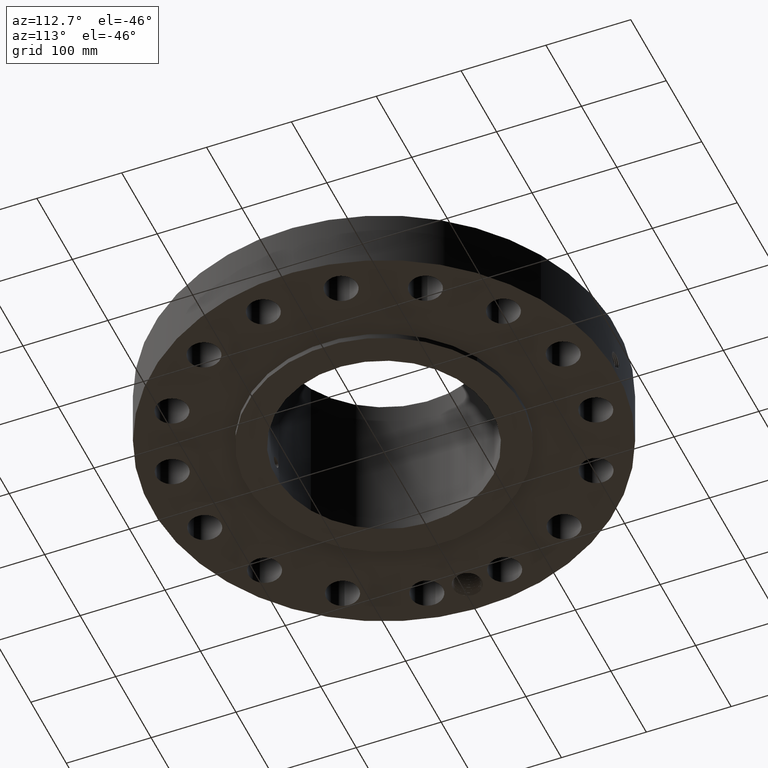
[diagram: clean part render]
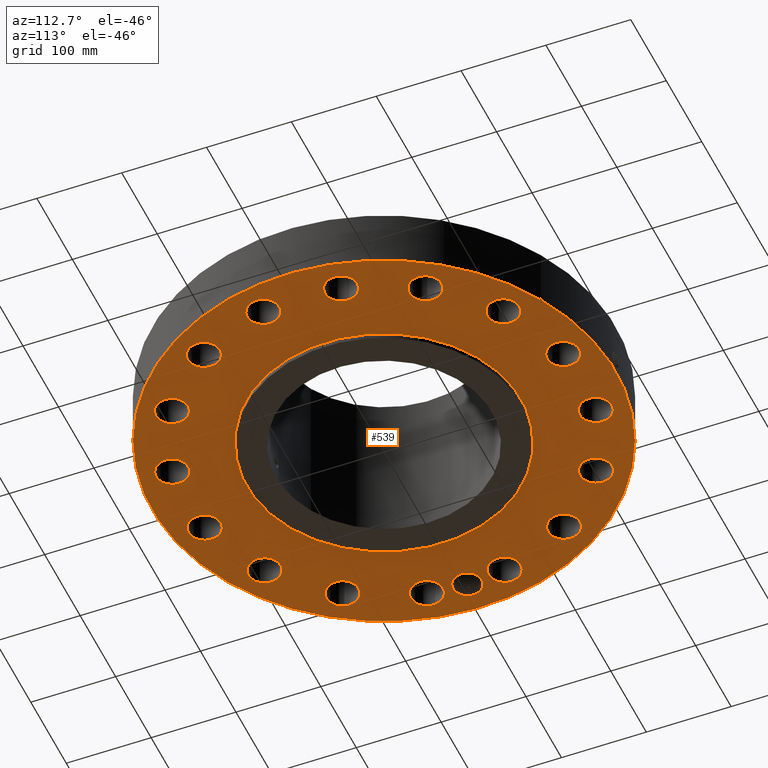
[diagram: same view with one face highlighted and labeled with its STEP entity id]
A machine part, auxiliary view. The second image highlights one B-rep face of the part: STEP entity #539.
In plain terms, the highlighted planar face has unit normal (0, 0, -1).
Its self-contained STEP definition (entity closure, byte-faithful):
#42=AXIS2_PLACEMENT_3D('Circle Axis2P3D',#40,#41,$) ;
#165=AXIS2_PLACEMENT_3D('Plane Axis2P3D',#162,#163,#164) ;
#169=AXIS2_PLACEMENT_3D('Circle Axis2P3D',#167,#168,$) ;
#216=AXIS2_PLACEMENT_3D('Circle Axis2P3D',#214,#215,$) ;
#223=AXIS2_PLACEMENT_3D('Circle Axis2P3D',#221,#222,$) ;
#235=AXIS2_PLACEMENT_3D('Circle Axis2P3D',#233,#234,$) ;
#244=AXIS2_PLACEMENT_3D('Circle Axis2P3D',#242,#243,$) ;
#253=AXIS2_PLACEMENT_3D('Circle Axis2P3D',#251,#252,$) ;
#262=AXIS2_PLACEMENT_3D('Circle Axis2P3D',#260,#261,$) ;
#271=AXIS2_PLACEMENT_3D('Circle Axis2P3D',#269,#270,$) ;
#280=AXIS2_PLACEMENT_3D('Circle Axis2P3D',#278,#279,$) ;
#289=AXIS2_PLACEMENT_3D('Circle Axis2P3D',#287,#288,$) ;
#298=AXIS2_PLACEMENT_3D('Circle Axis2P3D',#296,#297,$) ;
#307=AXIS2_PLACEMENT_3D('Circle Axis2P3D',#305,#306,$) ;
#316=AXIS2_PLACEMENT_3D('Circle Axis2P3D',#314,#315,$) ;
#325=AXIS2_PLACEMENT_3D('Circle Axis2P3D',#323,#324,$) ;
#334=AXIS2_PLACEMENT_3D('Circle Axis2P3D',#332,#333,$) ;
#343=AXIS2_PLACEMENT_3D('Circle Axis2P3D',#341,#342,$) ;
#352=AXIS2_PLACEMENT_3D('Circle Axis2P3D',#350,#351,$) ;
#361=AXIS2_PLACEMENT_3D('Circle Axis2P3D',#359,#360,$) ;
#370=AXIS2_PLACEMENT_3D('Circle Axis2P3D',#368,#369,$) ;
#379=AXIS2_PLACEMENT_3D('Circle Axis2P3D',#377,#378,$) ;
#388=AXIS2_PLACEMENT_3D('Circle Axis2P3D',#386,#387,$) ;
#397=AXIS2_PLACEMENT_3D('Circle Axis2P3D',#395,#396,$) ;
#406=AXIS2_PLACEMENT_3D('Circle Axis2P3D',#404,#405,$) ;
#415=AXIS2_PLACEMENT_3D('Circle Axis2P3D',#413,#414,$) ;
#424=AXIS2_PLACEMENT_3D('Circle Axis2P3D',#422,#423,$) ;
#433=AXIS2_PLACEMENT_3D('Circle Axis2P3D',#431,#432,$) ;
#442=AXIS2_PLACEMENT_3D('Circle Axis2P3D',#440,#441,$) ;
#451=AXIS2_PLACEMENT_3D('Circle Axis2P3D',#449,#450,$) ;
#460=AXIS2_PLACEMENT_3D('Circle Axis2P3D',#458,#459,$) ;
#469=AXIS2_PLACEMENT_3D('Circle Axis2P3D',#467,#468,$) ;
#478=AXIS2_PLACEMENT_3D('Circle Axis2P3D',#476,#477,$) ;
#487=AXIS2_PLACEMENT_3D('Circle Axis2P3D',#485,#486,$) ;
#496=AXIS2_PLACEMENT_3D('Circle Axis2P3D',#494,#495,$) ;
#505=AXIS2_PLACEMENT_3D('Circle Axis2P3D',#503,#504,$) ;
#514=AXIS2_PLACEMENT_3D('Circle Axis2P3D',#512,#513,$) ;
#523=AXIS2_PLACEMENT_3D('Circle Axis2P3D',#521,#522,$) ;
#532=AXIS2_PLACEMENT_3D('Circle Axis2P3D',#530,#531,$) ;
#40=CARTESIAN_POINT('Axis2P3D Location',(0.,0.,0.250000000001)) ;
#44=CARTESIAN_POINT('Vertex',(-5.15382454002,-9.43401254036,0.250000000001)) ;
#46=CARTESIAN_POINT('Vertex',(5.15382454002,9.43401254036,0.250000000001)) ;
#162=CARTESIAN_POINT('Axis2P3D Location',(0.,6.37500000003,0.250000000001)) ;
#167=CARTESIAN_POINT('Axis2P3D Location',(0.,0.,0.250000000001)) ;
#177=CARTESIAN_POINT('Control Point',(-9.93697696778,2.28215842271E-005,0.250000000001)) ;
#178=CARTESIAN_POINT('Control Point',(-9.93461018803,0.0645111681889,0.250000000001)) ;
#179=CARTESIAN_POINT('Control Point',(-9.92467095642,0.128591046445,0.250000000001)) ;
#180=CARTESIAN_POINT('Control Point',(-9.90723026991,0.191042748077,0.250000000001)) ;
#181=CARTESIAN_POINT('Control Point',(-9.87087877533,0.279241959945,0.250000000001)) ;
#182=CARTESIAN_POINT('Control Point',(-9.82024303099,0.359071094909,0.250000000001)) ;
#183=CARTESIAN_POINT('Control Point',(-9.80242020203,0.383924742451,0.250000000001)) ;
#184=CARTESIAN_POINT('Control Point',(-9.78324647051,0.407684534516,0.250000000001)) ;
#185=CARTESIAN_POINT('Control Point',(-9.76281219816,0.4302557489,0.250000000001)) ;
#186=CARTESIAN_POINT('Vertex',(-9.93697696778,2.28215842274E-005,0.250000000001)) ;
#188=CARTESIAN_POINT('Vertex',(-9.76281219816,0.4302557489,0.250000000001)) ;
#192=CARTESIAN_POINT('Control Point',(-9.93735228053,-0.0142511023246,0.250000000001)) ;
#193=CARTESIAN_POINT('Control Point',(-9.93730688621,-0.0113951617111,0.250000000001)) ;
#194=CARTESIAN_POINT('Control Point',(-9.93724665469,-0.00853970869665,0.250000000001)) ;
#195=CARTESIAN_POINT('Control Point',(-9.93717158515,-0.00568471114188,0.250000000001)) ;
#196=CARTESIAN_POINT('Control Point',(-9.93708168887,-0.00283054506743,0.250000000001)) ;
#197=CARTESIAN_POINT('Control Point',(-9.93697696778,2.2821584226E-005,0.250000000001)) ;
#198=CARTESIAN_POINT('Vertex',(-9.93735228053,-0.0142511023245,0.250000000001)) ;
#202=CARTESIAN_POINT('Control Point',(-9.93735228053,-0.0142511023245,0.250000000001)) ;
#203=CARTESIAN_POINT('Control Point',(-9.93365275874,-0.07868403214,0.250000000001)) ;
#204=CARTESIAN_POINT('Control Point',(-9.92239511228,-0.142551007603,0.250000000001)) ;
#205=CARTESIAN_POINT('Control Point',(-9.90366483333,-0.204660061794,0.250000000001)) ;
#206=CARTESIAN_POINT('Control Point',(-9.86436701379,-0.294716548308,0.250000000001)) ;
#207=CARTESIAN_POINT('Control Point',(-9.81007987127,-0.37563632435,0.250000000001)) ;
#208=CARTESIAN_POINT('Control Point',(-9.78979220561,-0.402162439289,0.250000000001)) ;
#209=CARTESIAN_POINT('Control Point',(-9.76793657174,-0.427335505287,0.250000000001)) ;
#210=CARTESIAN_POINT('Control Point',(-9.74463458959,-0.451035456281,0.250000000001)) ;
#211=CARTESIAN_POINT('Vertex',(-9.74463458959,-0.451035456281,0.250000000001)) ;
#214=CARTESIAN_POINT('Axis2P3D Location',(-9.25000000004,1.1189649382E-015,0.250000000001)) ;
#218=CARTESIAN_POINT('Vertex',(-8.66254623311,-0.320927455543,0.250000000001)) ;
#221=CARTESIAN_POINT('Axis2P3D Location',(-9.25000000004,1.1189649382E-015,0.250000000001)) ;
#233=CARTESIAN_POINT('Axis2P3D Location',(9.07226384377,-1.80458547866,0.250000000001)) ;
#237=CARTESIAN_POINT('Vertex',(9.73045076519,-2.16415463261,0.250000000001)) ;
#239=CARTESIAN_POINT('Vertex',(8.41407692235,-1.4450163247,0.250000000001)) ;
#242=CARTESIAN_POINT('Axis2P3D Location',(9.07226384377,-1.80458547866,0.250000000001)) ;
#251=CARTESIAN_POINT('Axis2P3D Location',(0.,0.,0.250000000001)) ;
#255=CARTESIAN_POINT('Vertex',(3.05633780861,5.59458883207,0.250000000001)) ;
#257=CARTESIAN_POINT('Vertex',(-3.05633780861,-5.59458883207,0.250000000001)) ;
#260=CARTESIAN_POINT('Axis2P3D Location',(0.,0.,0.250000000001)) ;
#269=CARTESIAN_POINT('Axis2P3D Location',(7.69109391383,-5.13902465545,0.250000000001)) ;
#273=CARTESIAN_POINT('Vertex',(7.22060964657,-4.55494884336,0.250000000001)) ;
#275=CARTESIAN_POINT('Vertex',(8.16157818109,-5.72310046754,0.250000000001)) ;
#278=CARTESIAN_POINT('Axis2P3D Location',(7.69109391383,-5.13902465545,0.250000000001)) ;
#287=CARTESIAN_POINT('Axis2P3D Location',(5.13902465545,-7.69109391383,0.250000000001)) ;
#291=CARTESIAN_POINT('Vertex',(4.92787000709,-6.97143169134,0.250000000001)) ;
#293=CARTESIAN_POINT('Vertex',(5.35017930381,-8.41075613632,0.250000000001)) ;
#296=CARTESIAN_POINT('Axis2P3D Location',(5.13902465545,-7.69109391383,0.250000000001)) ;
#305=CARTESIAN_POINT('Axis2P3D Location',(1.80458547866,-9.07226384377,0.250000000001)) ;
#309=CARTESIAN_POINT('Vertex',(1.88490683029,-8.32657726049,0.250000000001)) ;
#311=CARTESIAN_POINT('Vertex',(1.72426412702,-9.81795042704,0.250000000001)) ;
#314=CARTESIAN_POINT('Axis2P3D Location',(1.80458547866,-9.07226384377,0.250000000001)) ;
#323=CARTESIAN_POINT('Axis2P3D Location',(-1.80458547866,-9.07226384377,0.250000000001)) ;
#327=CARTESIAN_POINT('Vertex',(-1.4450163247,-8.41407692235,0.250000000001)) ;
#329=CARTESIAN_POINT('Vertex',(-2.16415463261,-9.73045076519,0.250000000001)) ;
#332=CARTESIAN_POINT('Axis2P3D Location',(-1.80458547866,-9.07226384377,0.250000000001)) ;
#341=CARTESIAN_POINT('Axis2P3D Location',(-5.13902465545,-7.69109391383,0.250000000001)) ;
#345=CARTESIAN_POINT('Vertex',(-4.55494884336,-7.22060964657,0.250000000001)) ;
#347=CARTESIAN_POINT('Vertex',(-5.72310046754,-8.16157818109,0.250000000001)) ;
#350=CARTESIAN_POINT('Axis2P3D Location',(-5.13902465545,-7.69109391383,0.250000000001)) ;
#359=CARTESIAN_POINT('Axis2P3D Location',(-7.69109391383,-5.13902465545,0.250000000001)) ;
#363=CARTESIAN_POINT('Vertex',(-6.97143169134,-4.92787000709,0.250000000001)) ;
#365=CARTESIAN_POINT('Vertex',(-8.41075613632,-5.35017930381,0.250000000001)) ;
#368=CARTESIAN_POINT('Axis2P3D Location',(-7.69109391383,-5.13902465545,0.250000000001)) ;
#377=CARTESIAN_POINT('Axis2P3D Location',(-9.07226384377,-1.80458547866,0.250000000001)) ;
#381=CARTESIAN_POINT('Vertex',(-8.32657726049,-1.88490683029,0.250000000001)) ;
#383=CARTESIAN_POINT('Vertex',(-9.81795042704,-1.72426412702,0.250000000001)) ;
#386=CARTESIAN_POINT('Axis2P3D Location',(-9.07226384377,-1.80458547866,0.250000000001)) ;
#395=CARTESIAN_POINT('Axis2P3D Location',(-9.07226384377,1.80458547866,0.250000000001)) ;
#399=CARTESIAN_POINT('Vertex',(-8.41407692235,1.4450163247,0.250000000001)) ;
#401=CARTESIAN_POINT('Vertex',(-9.73045076519,2.16415463261,0.250000000001)) ;
#404=CARTESIAN_POINT('Axis2P3D Location',(-9.07226384377,1.80458547866,0.250000000001)) ;
#413=CARTESIAN_POINT('Axis2P3D Location',(-7.69109391383,5.13902465545,0.250000000001)) ;
#417=CARTESIAN_POINT('Vertex',(-7.22060964657,4.55494884336,0.250000000001)) ;
#419=CARTESIAN_POINT('Vertex',(-8.16157818109,5.72310046754,0.250000000001)) ;
#422=CARTESIAN_POINT('Axis2P3D Location',(-7.69109391383,5.13902465545,0.250000000001)) ;
#431=CARTESIAN_POINT('Axis2P3D Location',(-5.13902465545,7.69109391383,0.250000000001)) ;
#435=CARTESIAN_POINT('Vertex',(-4.92787000709,6.97143169134,0.250000000001)) ;
#437=CARTESIAN_POINT('Vertex',(-5.35017930381,8.41075613632,0.250000000001)) ;
#440=CARTESIAN_POINT('Axis2P3D Location',(-5.13902465545,7.69109391383,0.250000000001)) ;
#449=CARTESIAN_POINT('Axis2P3D Location',(-1.80458547866,9.07226384377,0.250000000001)) ;
#453=CARTESIAN_POINT('Vertex',(-1.88490683029,8.32657726049,0.250000000001)) ;
#455=CARTESIAN_POINT('Vertex',(-1.72426412702,9.81795042704,0.250000000001)) ;
#458=CARTESIAN_POINT('Axis2P3D Location',(-1.80458547866,9.07226384377,0.250000000001)) ;
#467=CARTESIAN_POINT('Axis2P3D Location',(1.80458547866,9.07226384377,0.250000000001)) ;
#471=CARTESIAN_POINT('Vertex',(1.4450163247,8.41407692235,0.250000000001)) ;
#473=CARTESIAN_POINT('Vertex',(2.16415463261,9.73045076519,0.250000000001)) ;
#476=CARTESIAN_POINT('Axis2P3D Location',(1.80458547866,9.07226384377,0.250000000001)) ;
#485=CARTESIAN_POINT('Axis2P3D Location',(5.13902465545,7.69109391383,0.250000000001)) ;
#489=CARTESIAN_POINT('Vertex',(4.55494884336,7.22060964657,0.250000000001)) ;
#491=CARTESIAN_POINT('Vertex',(5.72310046754,8.16157818109,0.250000000001)) ;
#494=CARTESIAN_POINT('Axis2P3D Location',(5.13902465545,7.69109391383,0.250000000001)) ;
#503=CARTESIAN_POINT('Axis2P3D Location',(7.69109391383,5.13902465545,0.250000000001)) ;
#507=CARTESIAN_POINT('Vertex',(6.97143169134,4.92787000709,0.250000000001)) ;
#509=CARTESIAN_POINT('Vertex',(8.41075613632,5.35017930381,0.250000000001)) ;
#512=CARTESIAN_POINT('Axis2P3D Location',(7.69109391383,5.13902465545,0.250000000001)) ;
#521=CARTESIAN_POINT('Axis2P3D Location',(9.07226384377,1.80458547866,0.250000000001)) ;
#525=CARTESIAN_POINT('Vertex',(8.32657726049,1.88490683029,0.250000000001)) ;
#527=CARTESIAN_POINT('Vertex',(9.81795042704,1.72426412702,0.250000000001)) ;
#530=CARTESIAN_POINT('Axis2P3D Location',(9.07226384377,1.80458547866,0.250000000001)) ;
#41=DIRECTION('Axis2P3D Direction',(0.,0.,-0.0393700787402)) ;
#163=DIRECTION('Axis2P3D Direction',(0.,0.,-0.0393700787402)) ;
#164=DIRECTION('Axis2P3D XDirection',(0.0393700787402,0.,0.)) ;
#168=DIRECTION('Axis2P3D Direction',(0.,0.,-0.0393700787402)) ;
#215=DIRECTION('Axis2P3D Direction',(0.,0.,-0.0393700787402)) ;
#222=DIRECTION('Axis2P3D Direction',(0.,0.,-0.0393700787402)) ;
#234=DIRECTION('Axis2P3D Direction',(0.,0.,-0.0393700787402)) ;
#243=DIRECTION('Axis2P3D Direction',(0.,0.,-0.0393700787402)) ;
#252=DIRECTION('Axis2P3D Direction',(0.,0.,-0.0393700787402)) ;
#261=DIRECTION('Axis2P3D Direction',(0.,0.,-0.0393700787402)) ;
#270=DIRECTION('Axis2P3D Direction',(0.,0.,-0.0393700787402)) ;
#279=DIRECTION('Axis2P3D Direction',(0.,0.,-0.0393700787402)) ;
#288=DIRECTION('Axis2P3D Direction',(0.,0.,-0.0393700787402)) ;
#297=DIRECTION('Axis2P3D Direction',(0.,0.,-0.0393700787402)) ;
#306=DIRECTION('Axis2P3D Direction',(0.,0.,-0.0393700787402)) ;
#315=DIRECTION('Axis2P3D Direction',(0.,0.,-0.0393700787402)) ;
#324=DIRECTION('Axis2P3D Direction',(0.,0.,-0.0393700787402)) ;
#333=DIRECTION('Axis2P3D Direction',(0.,0.,-0.0393700787402)) ;
#342=DIRECTION('Axis2P3D Direction',(0.,0.,-0.0393700787402)) ;
#351=DIRECTION('Axis2P3D Direction',(0.,0.,-0.0393700787402)) ;
#360=DIRECTION('Axis2P3D Direction',(0.,0.,-0.0393700787402)) ;
#369=DIRECTION('Axis2P3D Direction',(0.,0.,-0.0393700787402)) ;
#378=DIRECTION('Axis2P3D Direction',(0.,0.,-0.0393700787402)) ;
#387=DIRECTION('Axis2P3D Direction',(0.,0.,-0.0393700787402)) ;
#396=DIRECTION('Axis2P3D Direction',(0.,0.,-0.0393700787402)) ;
#405=DIRECTION('Axis2P3D Direction',(0.,0.,-0.0393700787402)) ;
#414=DIRECTION('Axis2P3D Direction',(0.,0.,-0.0393700787402)) ;
#423=DIRECTION('Axis2P3D Direction',(0.,0.,-0.0393700787402)) ;
#432=DIRECTION('Axis2P3D Direction',(0.,0.,-0.0393700787402)) ;
#441=DIRECTION('Axis2P3D Direction',(0.,0.,-0.0393700787402)) ;
#450=DIRECTION('Axis2P3D Direction',(0.,0.,-0.0393700787402)) ;
#459=DIRECTION('Axis2P3D Direction',(0.,0.,-0.0393700787402)) ;
#468=DIRECTION('Axis2P3D Direction',(0.,0.,-0.0393700787402)) ;
#477=DIRECTION('Axis2P3D Direction',(0.,0.,-0.0393700787402)) ;
#486=DIRECTION('Axis2P3D Direction',(0.,0.,-0.0393700787402)) ;
#495=DIRECTION('Axis2P3D Direction',(0.,0.,-0.0393700787402)) ;
#504=DIRECTION('Axis2P3D Direction',(0.,0.,-0.0393700787402)) ;
#513=DIRECTION('Axis2P3D Direction',(0.,0.,-0.0393700787402)) ;
#522=DIRECTION('Axis2P3D Direction',(0.,0.,-0.0393700787402)) ;
#531=DIRECTION('Axis2P3D Direction',(0.,0.,-0.0393700787402)) ;
#173=ORIENTED_EDGE('',*,*,#48,.T.) ;
#174=ORIENTED_EDGE('',*,*,#171,.T.) ;
#227=ORIENTED_EDGE('',*,*,#190,.F.) ;
#228=ORIENTED_EDGE('',*,*,#200,.F.) ;
#229=ORIENTED_EDGE('',*,*,#213,.T.) ;
#230=ORIENTED_EDGE('',*,*,#220,.F.) ;
#231=ORIENTED_EDGE('',*,*,#225,.F.) ;
#248=ORIENTED_EDGE('',*,*,#241,.F.) ;
#249=ORIENTED_EDGE('',*,*,#246,.F.) ;
#266=ORIENTED_EDGE('',*,*,#259,.F.) ;
#267=ORIENTED_EDGE('',*,*,#264,.F.) ;
#284=ORIENTED_EDGE('',*,*,#277,.F.) ;
#285=ORIENTED_EDGE('',*,*,#282,.F.) ;
#302=ORIENTED_EDGE('',*,*,#295,.F.) ;
#303=ORIENTED_EDGE('',*,*,#300,.F.) ;
#320=ORIENTED_EDGE('',*,*,#313,.F.) ;
#321=ORIENTED_EDGE('',*,*,#318,.F.) ;
#338=ORIENTED_EDGE('',*,*,#331,.F.) ;
#339=ORIENTED_EDGE('',*,*,#336,.F.) ;
#356=ORIENTED_EDGE('',*,*,#349,.F.) ;
#357=ORIENTED_EDGE('',*,*,#354,.F.) ;
#374=ORIENTED_EDGE('',*,*,#367,.F.) ;
#375=ORIENTED_EDGE('',*,*,#372,.F.) ;
#392=ORIENTED_EDGE('',*,*,#385,.F.) ;
#393=ORIENTED_EDGE('',*,*,#390,.F.) ;
#410=ORIENTED_EDGE('',*,*,#403,.F.) ;
#411=ORIENTED_EDGE('',*,*,#408,.F.) ;
#428=ORIENTED_EDGE('',*,*,#421,.F.) ;
#429=ORIENTED_EDGE('',*,*,#426,.F.) ;
#446=ORIENTED_EDGE('',*,*,#439,.F.) ;
#447=ORIENTED_EDGE('',*,*,#444,.F.) ;
#464=ORIENTED_EDGE('',*,*,#457,.F.) ;
#465=ORIENTED_EDGE('',*,*,#462,.F.) ;
#482=ORIENTED_EDGE('',*,*,#475,.F.) ;
#483=ORIENTED_EDGE('',*,*,#480,.F.) ;
#500=ORIENTED_EDGE('',*,*,#493,.F.) ;
#501=ORIENTED_EDGE('',*,*,#498,.F.) ;
#518=ORIENTED_EDGE('',*,*,#511,.F.) ;
#519=ORIENTED_EDGE('',*,*,#516,.F.) ;
#536=ORIENTED_EDGE('',*,*,#529,.F.) ;
#537=ORIENTED_EDGE('',*,*,#534,.F.) ;
#232=FACE_BOUND('',#226,.T.) ;
#250=FACE_BOUND('',#247,.T.) ;
#268=FACE_BOUND('',#265,.T.) ;
#286=FACE_BOUND('',#283,.T.) ;
#304=FACE_BOUND('',#301,.T.) ;
#322=FACE_BOUND('',#319,.T.) ;
#340=FACE_BOUND('',#337,.T.) ;
#358=FACE_BOUND('',#355,.T.) ;
#376=FACE_BOUND('',#373,.T.) ;
#394=FACE_BOUND('',#391,.T.) ;
#412=FACE_BOUND('',#409,.T.) ;
#430=FACE_BOUND('',#427,.T.) ;
#448=FACE_BOUND('',#445,.T.) ;
#466=FACE_BOUND('',#463,.T.) ;
#484=FACE_BOUND('',#481,.T.) ;
#502=FACE_BOUND('',#499,.T.) ;
#520=FACE_BOUND('',#517,.T.) ;
#538=FACE_BOUND('',#535,.T.) ;
#539=ADVANCED_FACE('PartBody',(#175,#232,#250,#268,#286,#304,#322,#340,#358,#376,#394,#412,#430,#448,#466,#484,#502,#520,#538),#166,.T.) ;
#176=B_SPLINE_CURVE_WITH_KNOTS('',5,(#177,#178,#179,#180,#181,#182,#183,#184,#185),.UNSPECIFIED.,.F.,.U.,(6,3,6),(0.,11.2765229793,16.6745124158),.UNSPECIFIED.) ;
#191=B_SPLINE_CURVE_WITH_KNOTS('',5,(#192,#193,#194,#195,#196,#197),.UNSPECIFIED.,.F.,.U.,(6,6),(0.,0.498943705474),.UNSPECIFIED.) ;
#201=B_SPLINE_CURVE_WITH_KNOTS('',5,(#202,#203,#204,#205,#206,#207,#208,#209,#210),.UNSPECIFIED.,.F.,.U.,(6,3,6),(0.,11.2737938751,17.1559850058),.UNSPECIFIED.) ;
#43=CIRCLE('generated circle',#42,10.75) ;
#170=CIRCLE('generated circle',#169,10.75) ;
#217=CIRCLE('generated circle',#216,0.669400000003) ;
#224=CIRCLE('generated circle',#223,0.669400000003) ;
#236=CIRCLE('generated circle',#235,0.750000000003) ;
#245=CIRCLE('generated circle',#244,0.750000000003) ;
#254=CIRCLE('generated circle',#253,6.37500000003) ;
#263=CIRCLE('generated circle',#262,6.37500000003) ;
#272=CIRCLE('generated circle',#271,0.750000000003) ;
#281=CIRCLE('generated circle',#280,0.750000000003) ;
#290=CIRCLE('generated circle',#289,0.750000000003) ;
#299=CIRCLE('generated circle',#298,0.750000000003) ;
#308=CIRCLE('generated circle',#307,0.750000000003) ;
#317=CIRCLE('generated circle',#316,0.750000000003) ;
#326=CIRCLE('generated circle',#325,0.750000000003) ;
#335=CIRCLE('generated circle',#334,0.750000000003) ;
#344=CIRCLE('generated circle',#343,0.750000000003) ;
#353=CIRCLE('generated circle',#352,0.750000000003) ;
#362=CIRCLE('generated circle',#361,0.750000000003) ;
#371=CIRCLE('generated circle',#370,0.750000000003) ;
#380=CIRCLE('generated circle',#379,0.750000000003) ;
#389=CIRCLE('generated circle',#388,0.750000000003) ;
#398=CIRCLE('generated circle',#397,0.750000000003) ;
#407=CIRCLE('generated circle',#406,0.750000000003) ;
#416=CIRCLE('generated circle',#415,0.750000000003) ;
#425=CIRCLE('generated circle',#424,0.750000000003) ;
#434=CIRCLE('generated circle',#433,0.750000000003) ;
#443=CIRCLE('generated circle',#442,0.750000000003) ;
#452=CIRCLE('generated circle',#451,0.750000000003) ;
#461=CIRCLE('generated circle',#460,0.750000000003) ;
#470=CIRCLE('generated circle',#469,0.750000000003) ;
#479=CIRCLE('generated circle',#478,0.750000000003) ;
#488=CIRCLE('generated circle',#487,0.750000000003) ;
#497=CIRCLE('generated circle',#496,0.750000000003) ;
#506=CIRCLE('generated circle',#505,0.750000000003) ;
#515=CIRCLE('generated circle',#514,0.750000000003) ;
#524=CIRCLE('generated circle',#523,0.750000000003) ;
#533=CIRCLE('generated circle',#532,0.750000000003) ;
#48=EDGE_CURVE('',#45,#47,#43,.T.) ;
#171=EDGE_CURVE('',#47,#45,#170,.T.) ;
#190=EDGE_CURVE('',#187,#189,#176,.T.) ;
#200=EDGE_CURVE('',#199,#187,#191,.T.) ;
#213=EDGE_CURVE('',#199,#212,#201,.T.) ;
#220=EDGE_CURVE('',#219,#212,#217,.T.) ;
#225=EDGE_CURVE('',#189,#219,#224,.T.) ;
#241=EDGE_CURVE('',#238,#240,#236,.T.) ;
#246=EDGE_CURVE('',#240,#238,#245,.T.) ;
#259=EDGE_CURVE('',#256,#258,#254,.T.) ;
#264=EDGE_CURVE('',#258,#256,#263,.T.) ;
#277=EDGE_CURVE('',#274,#276,#272,.T.) ;
#282=EDGE_CURVE('',#276,#274,#281,.T.) ;
#295=EDGE_CURVE('',#292,#294,#290,.T.) ;
#300=EDGE_CURVE('',#294,#292,#299,.T.) ;
#313=EDGE_CURVE('',#310,#312,#308,.T.) ;
#318=EDGE_CURVE('',#312,#310,#317,.T.) ;
#331=EDGE_CURVE('',#328,#330,#326,.T.) ;
#336=EDGE_CURVE('',#330,#328,#335,.T.) ;
#349=EDGE_CURVE('',#346,#348,#344,.T.) ;
#354=EDGE_CURVE('',#348,#346,#353,.T.) ;
#367=EDGE_CURVE('',#364,#366,#362,.T.) ;
#372=EDGE_CURVE('',#366,#364,#371,.T.) ;
#385=EDGE_CURVE('',#382,#384,#380,.T.) ;
#390=EDGE_CURVE('',#384,#382,#389,.T.) ;
#403=EDGE_CURVE('',#400,#402,#398,.T.) ;
#408=EDGE_CURVE('',#402,#400,#407,.T.) ;
#421=EDGE_CURVE('',#418,#420,#416,.T.) ;
#426=EDGE_CURVE('',#420,#418,#425,.T.) ;
#439=EDGE_CURVE('',#436,#438,#434,.T.) ;
#444=EDGE_CURVE('',#438,#436,#443,.T.) ;
#457=EDGE_CURVE('',#454,#456,#452,.T.) ;
#462=EDGE_CURVE('',#456,#454,#461,.T.) ;
#475=EDGE_CURVE('',#472,#474,#470,.T.) ;
#480=EDGE_CURVE('',#474,#472,#479,.T.) ;
#493=EDGE_CURVE('',#490,#492,#488,.T.) ;
#498=EDGE_CURVE('',#492,#490,#497,.T.) ;
#511=EDGE_CURVE('',#508,#510,#506,.T.) ;
#516=EDGE_CURVE('',#510,#508,#515,.T.) ;
#529=EDGE_CURVE('',#526,#528,#524,.T.) ;
#534=EDGE_CURVE('',#528,#526,#533,.T.) ;
#172=EDGE_LOOP('',(#173,#174)) ;
#226=EDGE_LOOP('',(#227,#228,#229,#230,#231)) ;
#247=EDGE_LOOP('',(#248,#249)) ;
#265=EDGE_LOOP('',(#266,#267)) ;
#283=EDGE_LOOP('',(#284,#285)) ;
#301=EDGE_LOOP('',(#302,#303)) ;
#319=EDGE_LOOP('',(#320,#321)) ;
#337=EDGE_LOOP('',(#338,#339)) ;
#355=EDGE_LOOP('',(#356,#357)) ;
#373=EDGE_LOOP('',(#374,#375)) ;
#391=EDGE_LOOP('',(#392,#393)) ;
#409=EDGE_LOOP('',(#410,#411)) ;
#427=EDGE_LOOP('',(#428,#429)) ;
#445=EDGE_LOOP('',(#446,#447)) ;
#463=EDGE_LOOP('',(#464,#465)) ;
#481=EDGE_LOOP('',(#482,#483)) ;
#499=EDGE_LOOP('',(#500,#501)) ;
#517=EDGE_LOOP('',(#518,#519)) ;
#535=EDGE_LOOP('',(#536,#537)) ;
#175=FACE_OUTER_BOUND('',#172,.T.) ;
#166=PLANE('',#165) ;
#45=VERTEX_POINT('',#44) ;
#47=VERTEX_POINT('',#46) ;
#187=VERTEX_POINT('',#186) ;
#189=VERTEX_POINT('',#188) ;
#199=VERTEX_POINT('',#198) ;
#212=VERTEX_POINT('',#211) ;
#219=VERTEX_POINT('',#218) ;
#238=VERTEX_POINT('',#237) ;
#240=VERTEX_POINT('',#239) ;
#256=VERTEX_POINT('',#255) ;
#258=VERTEX_POINT('',#257) ;
#274=VERTEX_POINT('',#273) ;
#276=VERTEX_POINT('',#275) ;
#292=VERTEX_POINT('',#291) ;
#294=VERTEX_POINT('',#293) ;
#310=VERTEX_POINT('',#309) ;
#312=VERTEX_POINT('',#311) ;
#328=VERTEX_POINT('',#327) ;
#330=VERTEX_POINT('',#329) ;
#346=VERTEX_POINT('',#345) ;
#348=VERTEX_POINT('',#347) ;
#364=VERTEX_POINT('',#363) ;
#366=VERTEX_POINT('',#365) ;
#382=VERTEX_POINT('',#381) ;
#384=VERTEX_POINT('',#383) ;
#400=VERTEX_POINT('',#399) ;
#402=VERTEX_POINT('',#401) ;
#418=VERTEX_POINT('',#417) ;
#420=VERTEX_POINT('',#419) ;
#436=VERTEX_POINT('',#435) ;
#438=VERTEX_POINT('',#437) ;
#454=VERTEX_POINT('',#453) ;
#456=VERTEX_POINT('',#455) ;
#472=VERTEX_POINT('',#471) ;
#474=VERTEX_POINT('',#473) ;
#490=VERTEX_POINT('',#489) ;
#492=VERTEX_POINT('',#491) ;
#508=VERTEX_POINT('',#507) ;
#510=VERTEX_POINT('',#509) ;
#526=VERTEX_POINT('',#525) ;
#528=VERTEX_POINT('',#527) ;